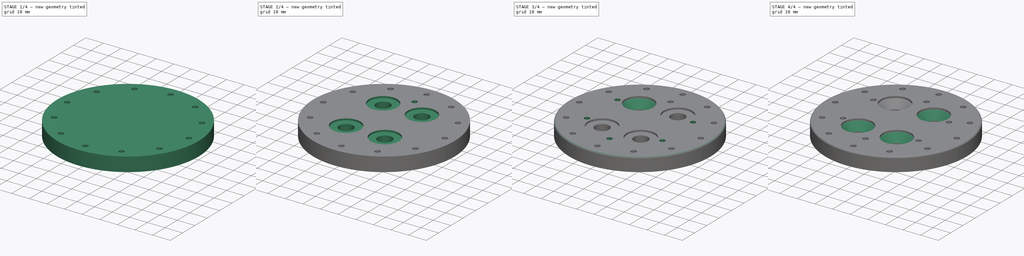
[diagram: build sequence overview — one tinted view per stage of 4, left to right]
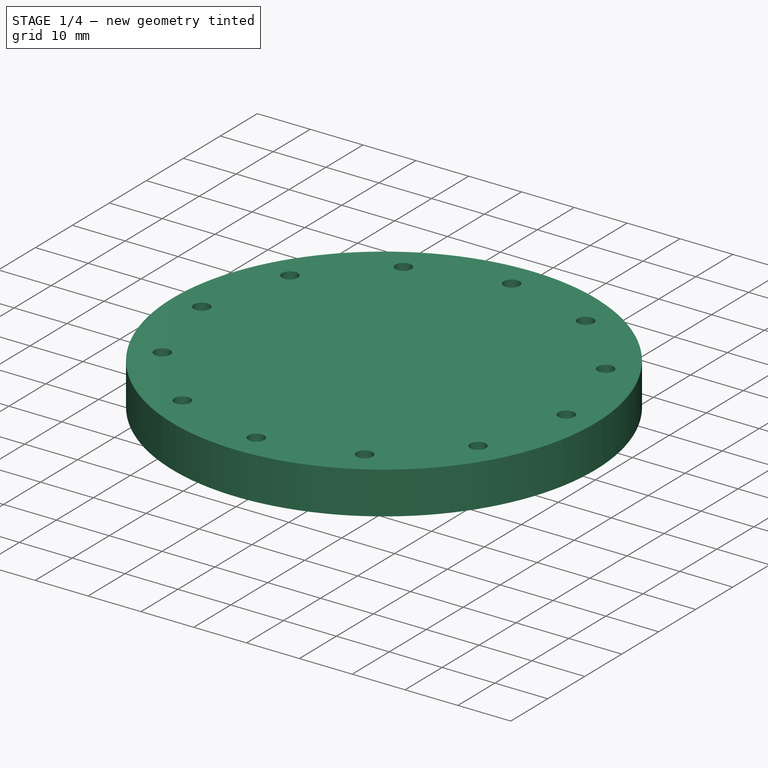
[diagram: stage 1 of 4 — iso view after this stage's code; geometry added in this stage tinted green]
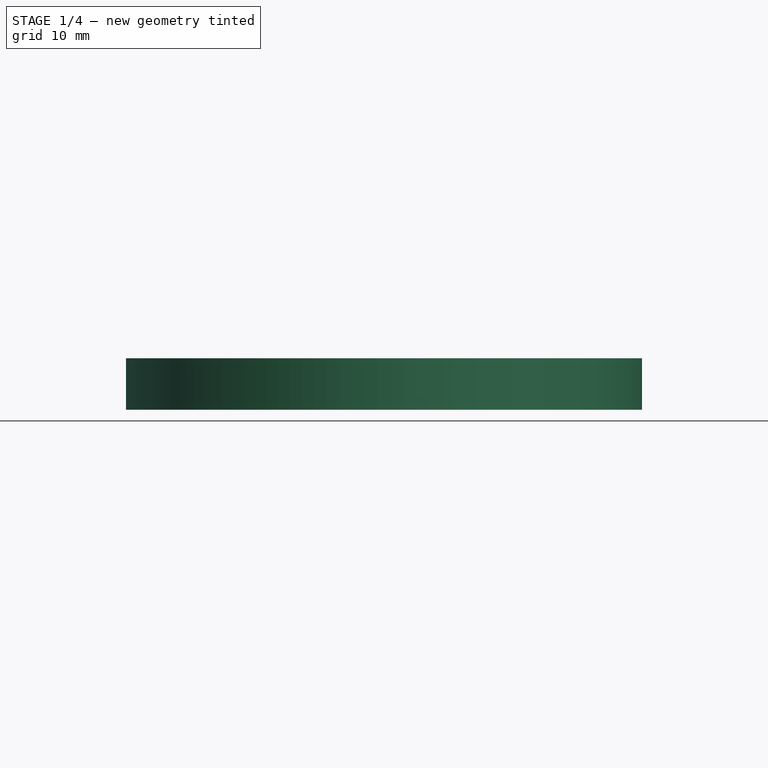
[diagram: stage 1 of 4 — front view after this stage's code; geometry added in this stage tinted green]
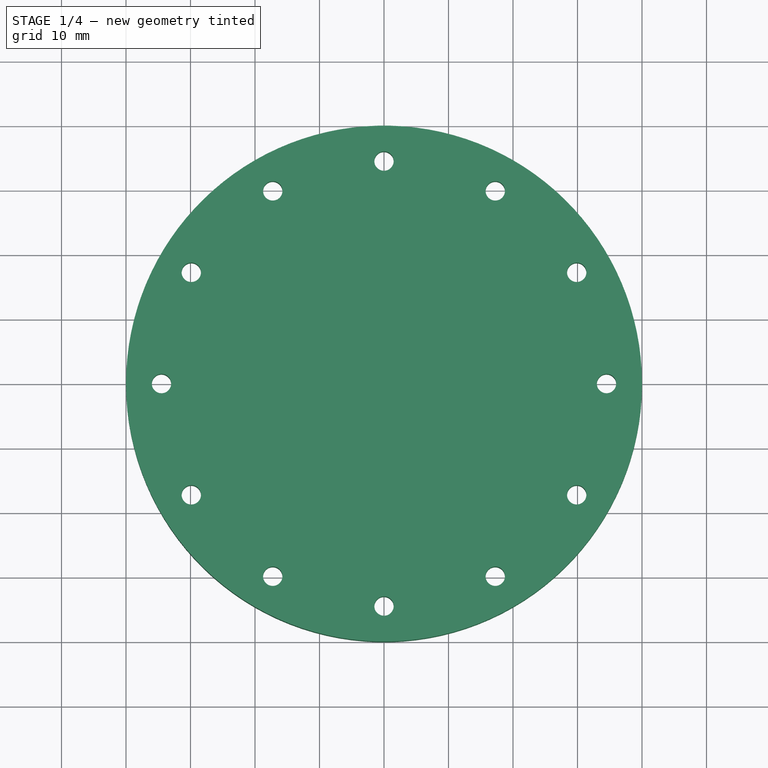
[diagram: stage 1 of 4 — top view after this stage's code; geometry added in this stage tinted green]
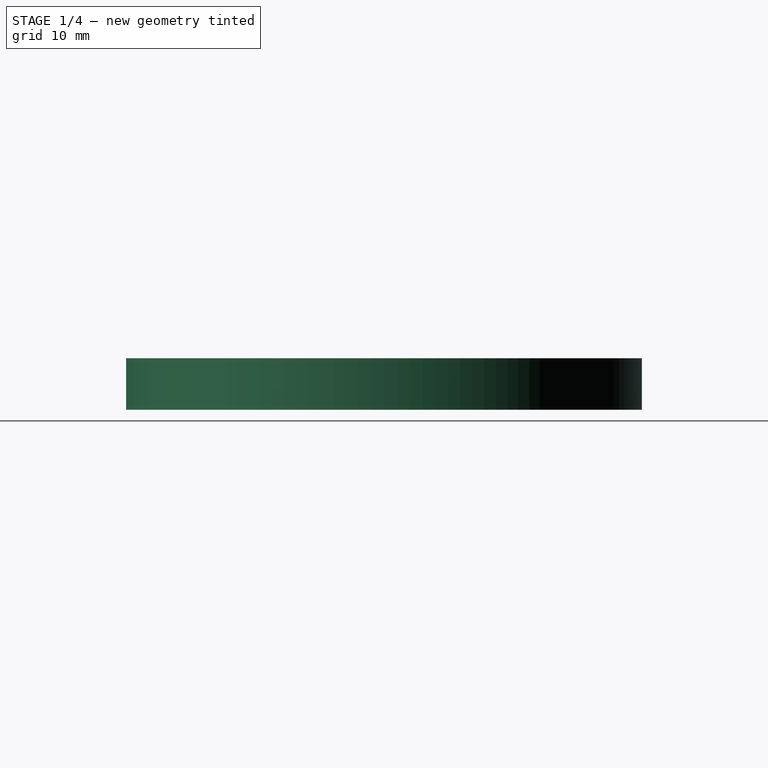
[diagram: stage 1 of 4 — right view after this stage's code; geometry added in this stage tinted green]
FCSTD DOCUMENT  (FreeCAD 0.16R6712 (Git))
Label: TestRig_DummyRingDrive3
License: All rights reserved
LicenseURL: http://en.wikipedia.org/wiki/All_rights_reserved
objects: Sketcher::SketchObject×5, PartDesign::Pocket×4, PartDesign::Chamfer×4, PartDesign::PolarPattern×2, PartDesign::Pad×1, PartDesign::Fillet×1
note: 22 computed .brp shape members not serialized (recipe doc carries the construction recipe); baked Part::Feature solids carry a one-line shape summary decoded from their .brp

FEATURE [Sketcher::SketchObject] Sketch
  sketch-geometry (1):
    g0: Circle CenterX=0 CenterY=0 CenterZ=0 NormalX=0 NormalY=0 NormalZ=1 Radius=40
  constraints (1):
    c: Radius(g0) = 40
FEATURE [PartDesign::Pad] Pad
  Length = 8
  Length2 = 100
  Sketch = -> Sketch
  Type = 0
FEATURE [Sketcher::SketchObject] Sketch001
  Placement = pos=(0,0,8) rot=(0,0,1;0rad)
  Support = -> Pad [Face3]
  sketch-geometry (1):
    g0: Circle CenterX=34.5 CenterY=0 CenterZ=0 NormalX=0 NormalY=0 NormalZ=1 Radius=1.5
  constraints (3):
    c: PointOnObject(g0,g-1)
    c: DistanceX(g-1,g0) = 34.5
    c: Radius(g0) = 1.5
FEATURE [PartDesign::Pocket] Pocket
  Length = 5
  Sketch = -> Sketch001
  Type = 1
FEATURE [PartDesign::PolarPattern] PolarPattern
  Angle = 360
  Axis = -> Sketch001 [N_Axis]
  Occurrences = 12
  Originals = -> [Pocket]
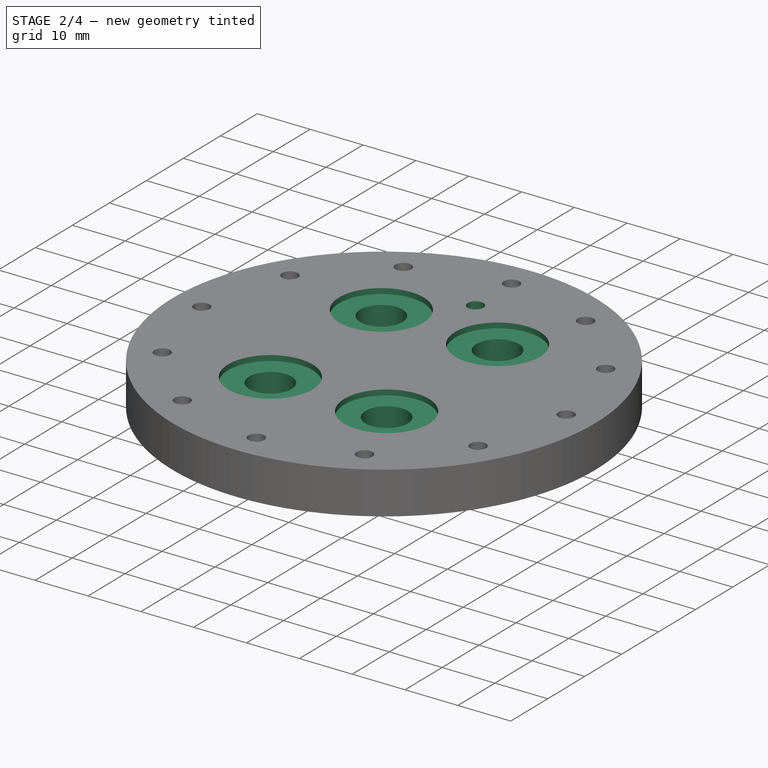
[diagram: stage 2 of 4 — iso view after this stage's code; geometry added in this stage tinted green]
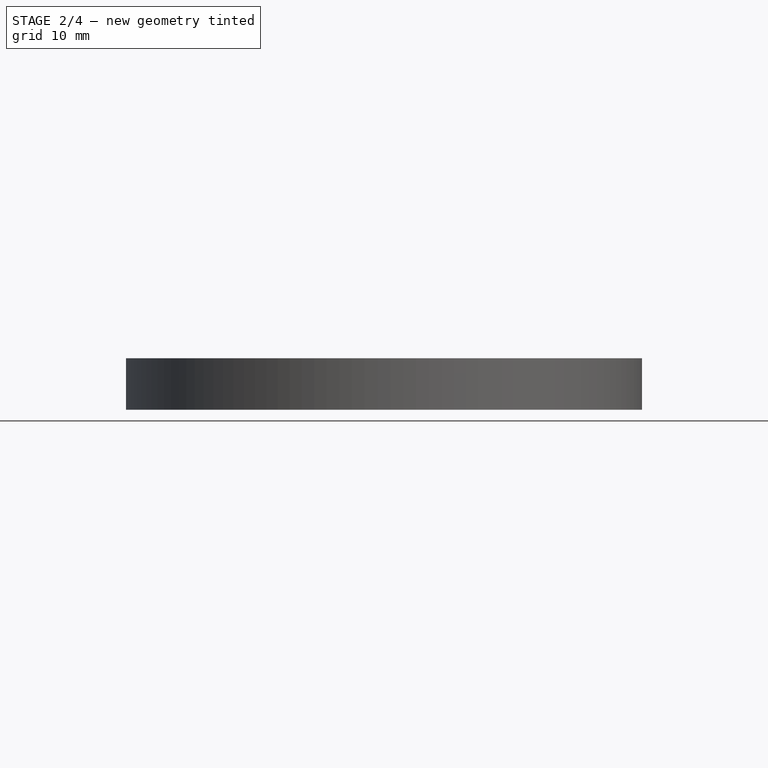
[diagram: stage 2 of 4 — front view after this stage's code; geometry added in this stage tinted green]
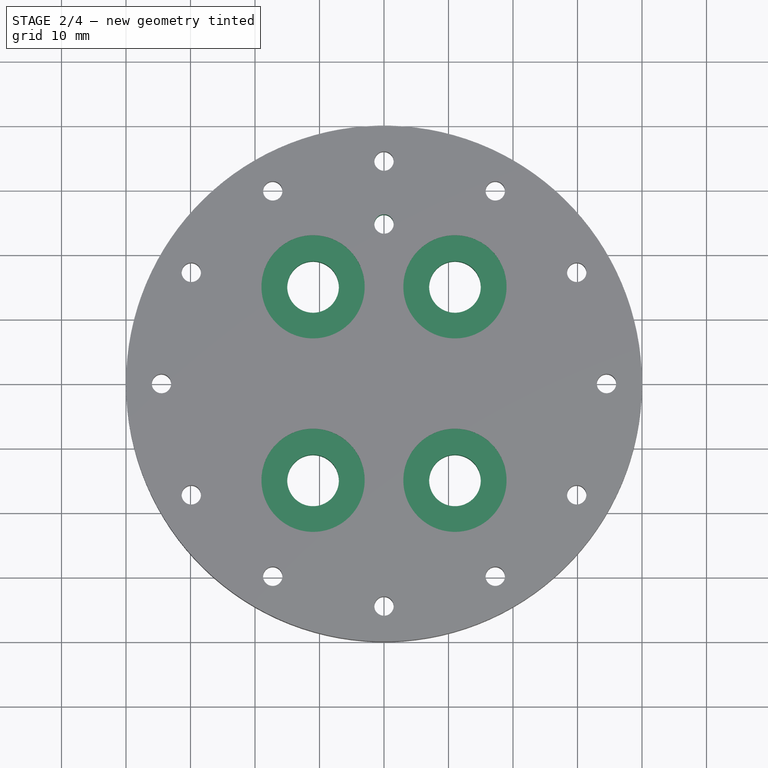
[diagram: stage 2 of 4 — top view after this stage's code; geometry added in this stage tinted green]
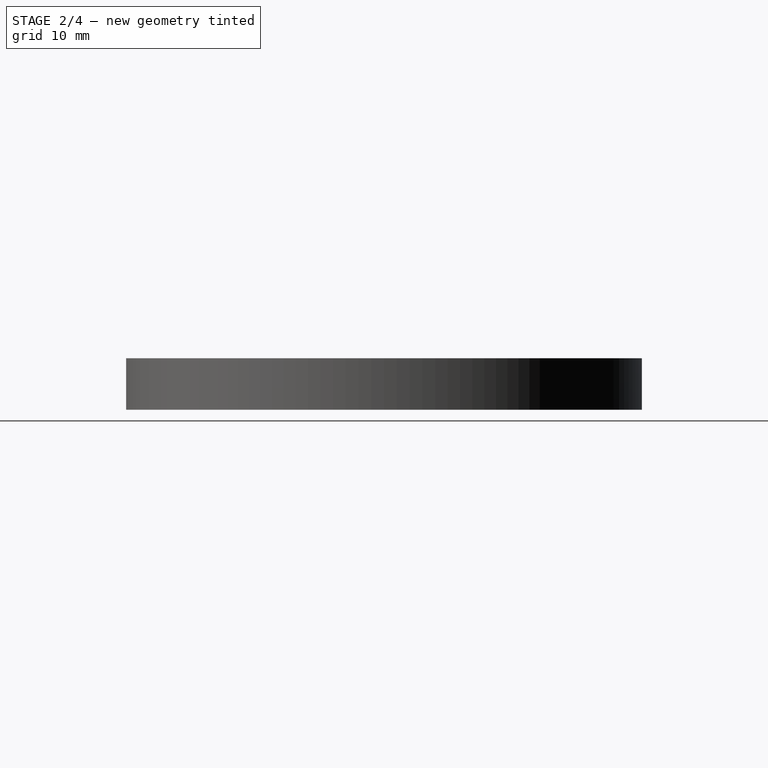
[diagram: stage 2 of 4 — right view after this stage's code; geometry added in this stage tinted green]
FEATURE [Sketcher::SketchObject] Sketch002
  Placement = pos=(0,0,8) rot=(0,0,1;0rad)
  Support = -> PolarPattern [Face3]
  sketch-geometry (10):
    g0: LineSegment [constr] StartX=-11 StartY=15 StartZ=0 EndX=11 EndY=15 EndZ=0
    g1: LineSegment [constr] StartX=11 StartY=15 StartZ=0 EndX=11 EndY=-15 EndZ=0
    g2: LineSegment [constr] StartX=11 StartY=-15 StartZ=0 EndX=-11 EndY=-15 EndZ=0
    g3: LineSegment [constr] StartX=-11 StartY=-15 StartZ=0 EndX=-11 EndY=15 EndZ=0
    g4: GeomPoint [constr] X=0 Y=15 Z=0
    g5: GeomPoint [constr] X=-11 Y=0 Z=0
    g6: Circle CenterX=11 CenterY=15 CenterZ=0 NormalX=0 NormalY=0 NormalZ=1 Radius=4
    g7: Circle CenterX=11 CenterY=-15 CenterZ=0 NormalX=0 NormalY=0 NormalZ=1 Radius=4
    g8: Circle CenterX=-11 CenterY=-15 CenterZ=0 NormalX=0 NormalY=0 NormalZ=1 Radius=4
    g9: Circle CenterX=-11 CenterY=15 CenterZ=0 NormalX=0 NormalY=0 NormalZ=1 Radius=4
  constraints (24):
    c: Coincident(g0,g1)
    c: Coincident(g1,g2)
    c: Coincident(g2,g3)
    c: Coincident(g3,g0)
    c: Horizontal(g0)
    c: Horizontal(g2)
    c: Vertical(g1)
    c: Vertical(g3)
    c: PointOnObject(g4,g0)
    c: PointOnObject(g5,g3)
    c: Symmetric(g0,g0,g4)
    c: PointOnObject(g4,g-2)
    c: Symmetric(g0,g2,g5)
    c: PointOnObject(g5,g-1)
    c: DistanceX(g0,g0) = 22
    c: DistanceY(g1,g1) = 30
    c: Coincident(g6,g0)
    c: Coincident(g7,g1)
    c: Coincident(g8,g2)
    c: Coincident(g9,g0)
    c: Radius(g6) = 4
    c: Equal(g9,g8)
    c: Equal(g8,g7)
    c: Equal(g7,g6)
FEATURE [PartDesign::Pocket] Pocket001
  Length = 5
  Sketch = -> Sketch002
  Type = 1
FEATURE [Sketcher::SketchObject] Sketch003
  ExternalGeometry = -> [Pocket001]
  Placement = pos=(0,0,8) rot=(0,0,1;0rad)
  Support = -> Pocket001 [Face3]
  sketch-geometry (8):
    g0: LineSegment [constr] StartX=-11 StartY=15 StartZ=0 EndX=11 EndY=15 EndZ=0
    g1: LineSegment [constr] StartX=11 StartY=15 StartZ=0 EndX=11 EndY=-15 EndZ=0
    g2: LineSegment [constr] StartX=11 StartY=-15 StartZ=0 EndX=-11 EndY=-15 EndZ=0
    g3: LineSegment [constr] StartX=-11 StartY=-15 StartZ=0 EndX=-11 EndY=15 EndZ=0
    g4: Circle CenterX=11 CenterY=15 CenterZ=0 NormalX=0 NormalY=0 NormalZ=1 Radius=8
    g5: Circle CenterX=-11 CenterY=15 CenterZ=0 NormalX=0 NormalY=0 NormalZ=1 Radius=8
    g6: Circle CenterX=-11 CenterY=-15 CenterZ=0 NormalX=0 NormalY=0 NormalZ=1 Radius=8
    g7: Circle CenterX=11 CenterY=-15 CenterZ=0 NormalX=0 NormalY=0 NormalZ=1 Radius=8
  constraints (19):
    c: Coincident(g0,g1)
    c: Coincident(g1,g2)
    c: Coincident(g2,g3)
    c: Coincident(g3,g0)
    c: Horizontal(g0)
    c: Horizontal(g2)
    c: Vertical(g1)
    c: Vertical(g3)
    c: Coincident(g4,g0)
    c: Coincident(g5,g0)
    c: Coincident(g6,g2)
    c: Coincident(g7,g1)
    c: Radius(g5) = 8
    c: Equal(g0,g4)
    c: Equal(g4,g6)
    c: Equal(g6,g7)
    c: Equal(g7,g5)
    c: Coincident(g2,g-3)
    c: Coincident(g0,g-4)
FEATURE [PartDesign::Pocket] Pocket002
  Length = 1
  Sketch = -> Sketch003
  Type = 0
FEATURE [Sketcher::SketchObject] Sketch004
  Placement = pos=(0,0,8) rot=(0,0,1;0rad)
  Support = -> Pocket002 [Face3]
  sketch-geometry (2):
    g0: Circle CenterX=0 CenterY=25 CenterZ=0 NormalX=0 NormalY=0 NormalZ=1 Radius=1.5
    g1: LineSegment StartX=0 StartY=25 StartZ=0 EndX=0 EndY=0 EndZ=0
  constraints (6):
    c: PointOnObject(g0,g-2)
    c: Radius(g0) = 1.5
    c: Coincident(g1,g0)
    c: Coincident(g1,g-1)
    c: Vertical(g1)
    c: DistanceY(g1,g1) = 25
FEATURE [PartDesign::Pocket] Pocket003
  Length = 5
  Sketch = -> Sketch004
  Type = 1
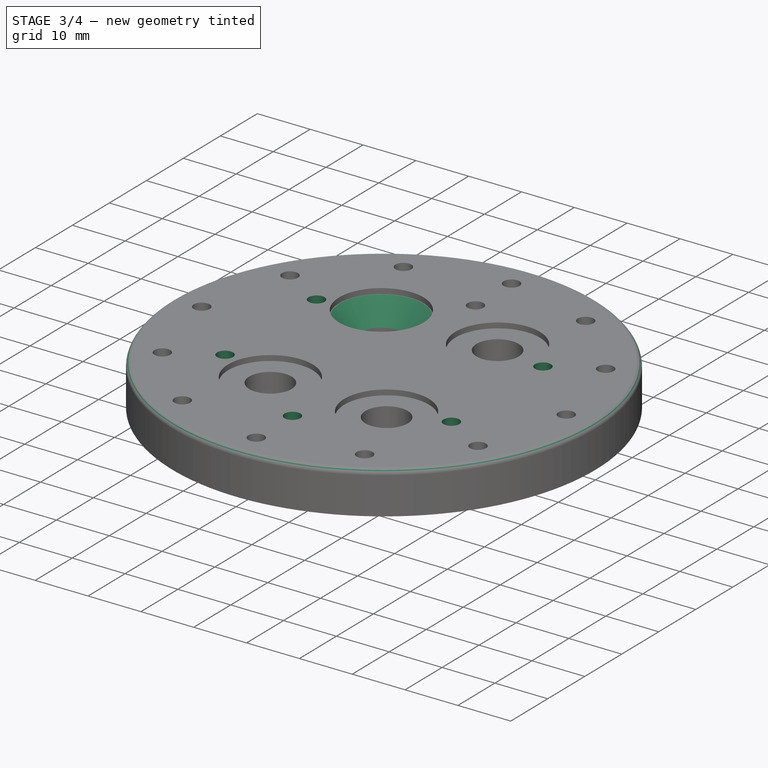
[diagram: stage 3 of 4 — iso view after this stage's code; geometry added in this stage tinted green]
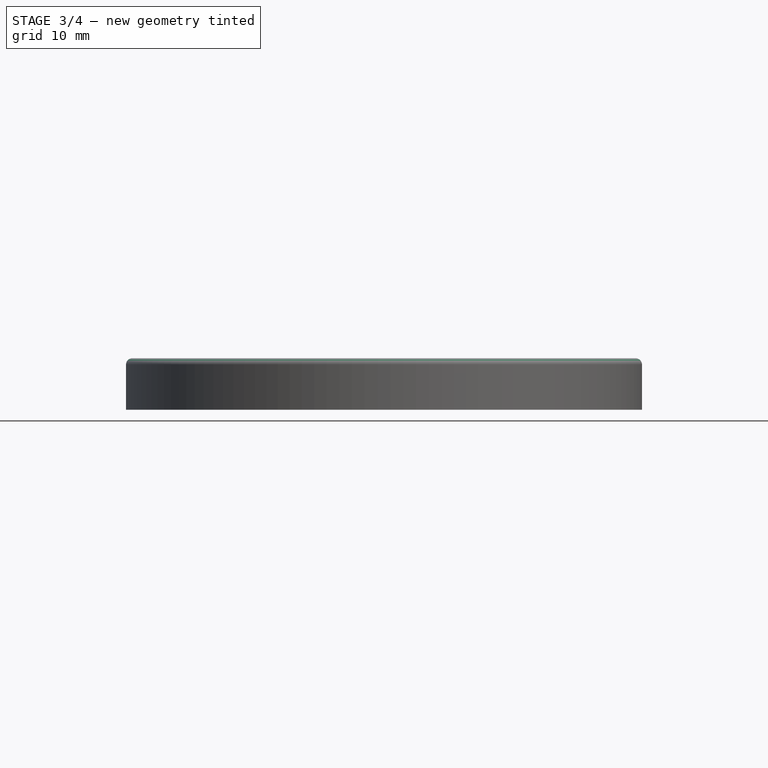
[diagram: stage 3 of 4 — front view after this stage's code; geometry added in this stage tinted green]
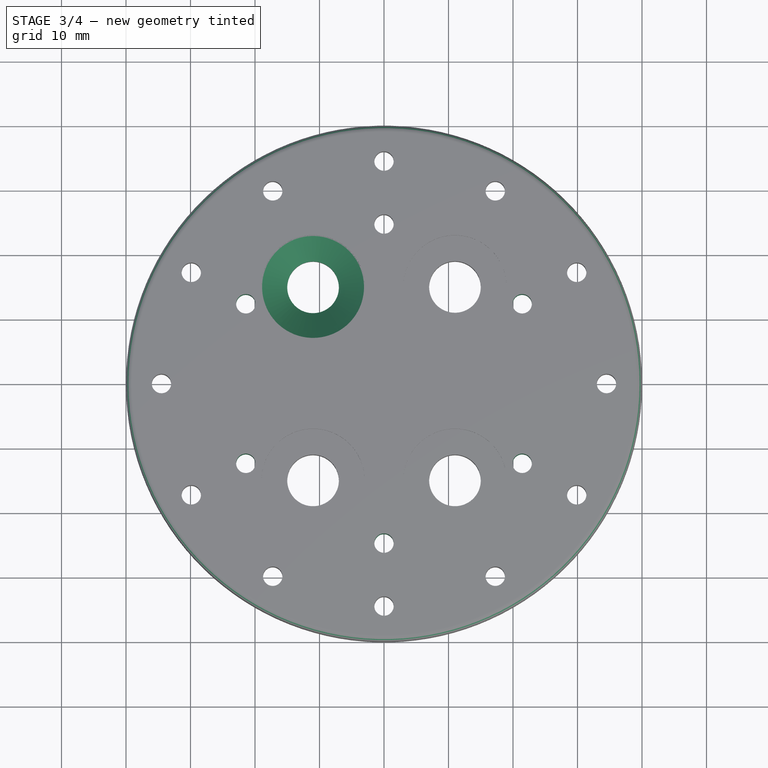
[diagram: stage 3 of 4 — top view after this stage's code; geometry added in this stage tinted green]
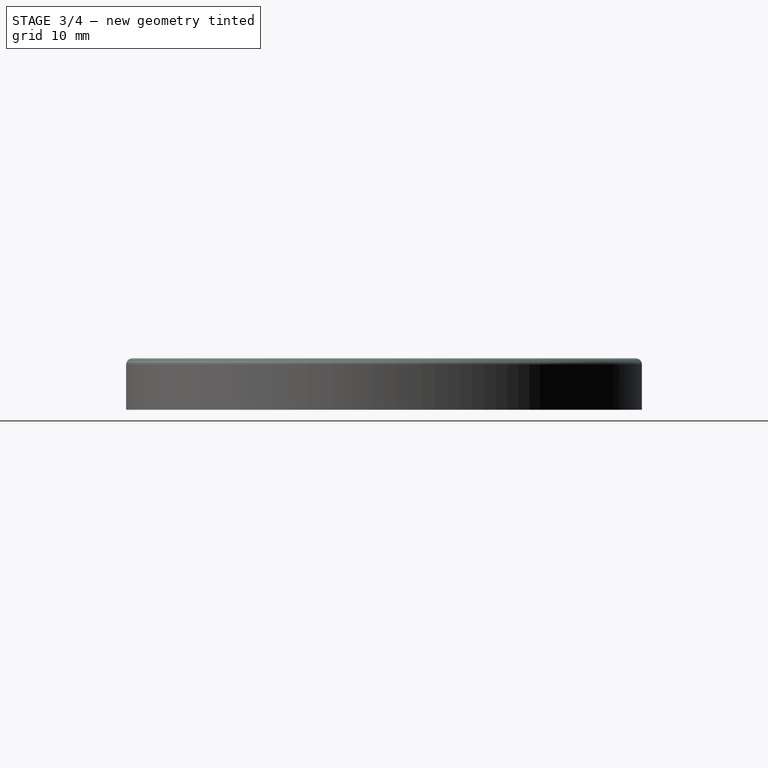
[diagram: stage 3 of 4 — right view after this stage's code; geometry added in this stage tinted green]
FEATURE [PartDesign::PolarPattern] PolarPattern001
  Angle = 360
  Axis = -> Sketch004 [N_Axis]
  Occurrences = 6
  Originals = -> [Pocket003]
FEATURE [PartDesign::Fillet] Fillet
  Base = -> PolarPattern001 [Edge3]
  Radius = 1
FEATURE [PartDesign::Chamfer] Chamfer
  Base = -> Fillet [Edge51]
  Size = 3.9
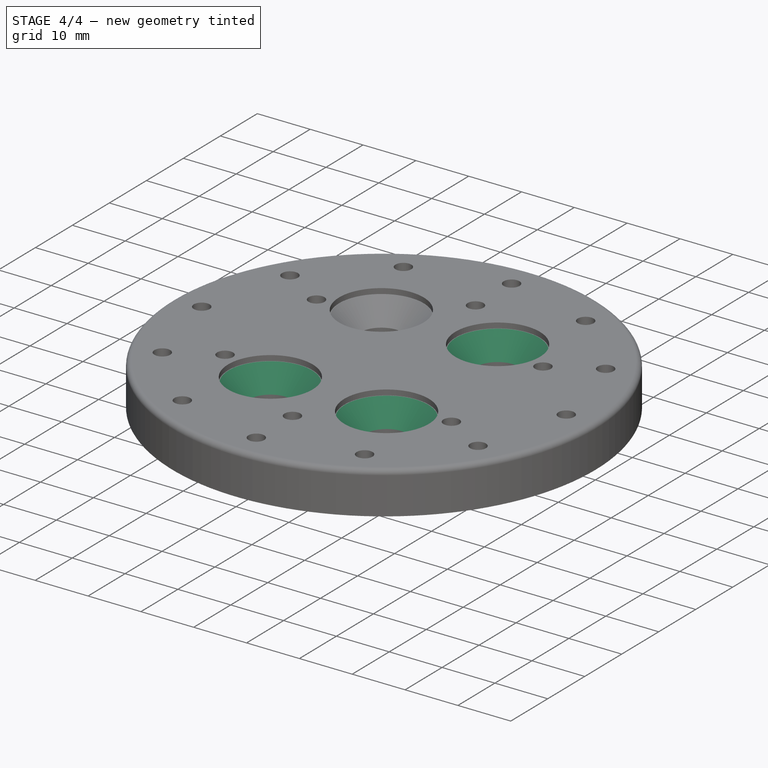
[diagram: stage 4 of 4 — iso view after this stage's code; geometry added in this stage tinted green]
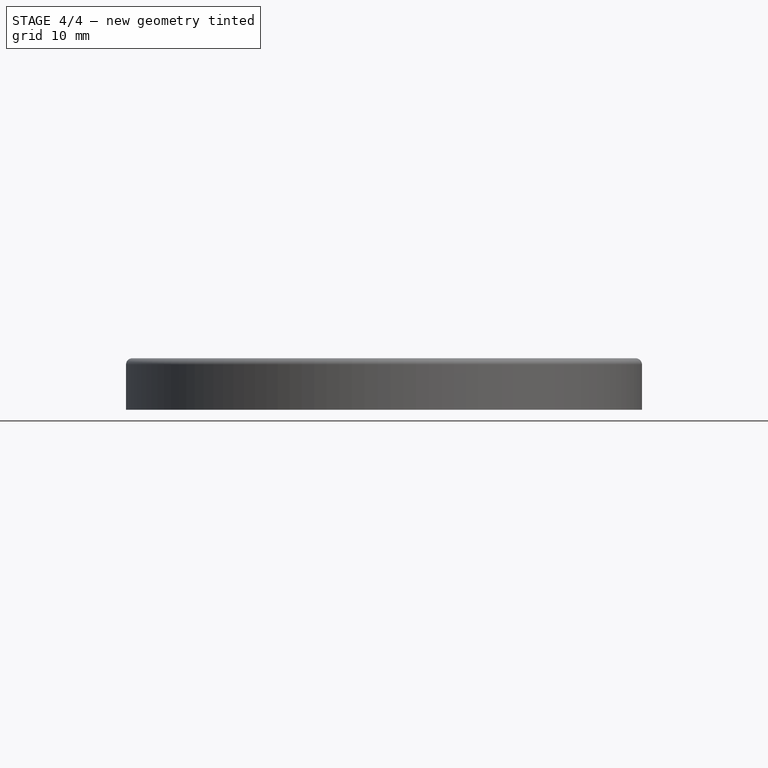
[diagram: stage 4 of 4 — front view after this stage's code; geometry added in this stage tinted green]
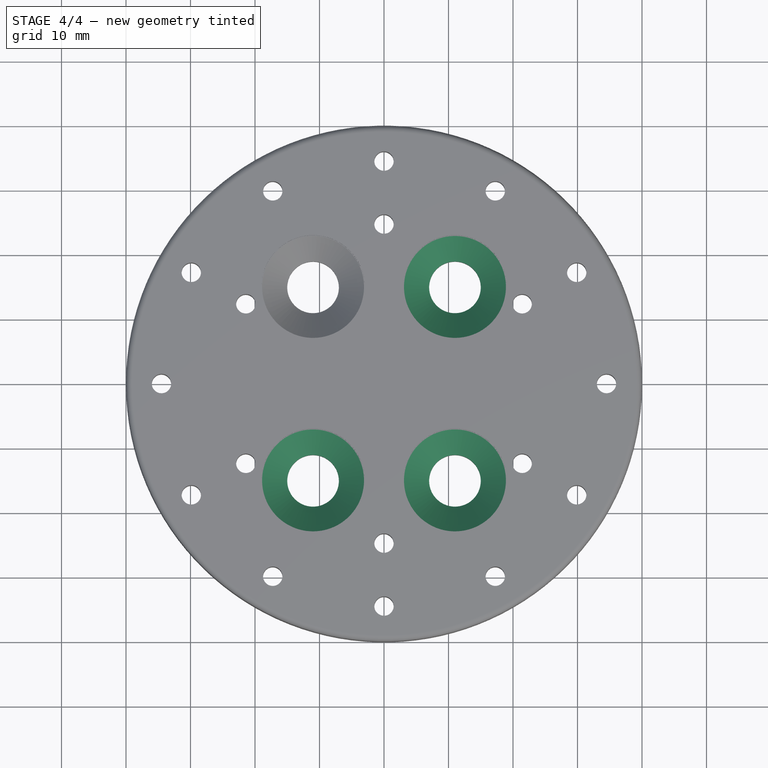
[diagram: stage 4 of 4 — top view after this stage's code; geometry added in this stage tinted green]
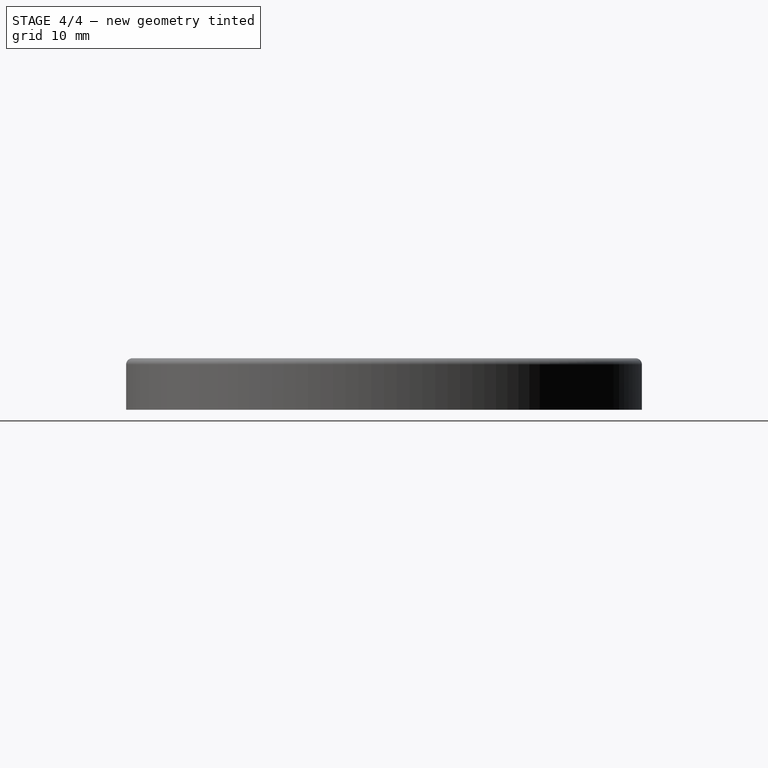
[diagram: stage 4 of 4 — right view after this stage's code; geometry added in this stage tinted green]
FEATURE [PartDesign::Chamfer] Chamfer001
  Base = -> Chamfer [Edge37]
  Size = 3.9
FEATURE [PartDesign::Chamfer] Chamfer002
  Base = -> Chamfer001 [Edge41]
  Size = 3.9
FEATURE [PartDesign::Chamfer] Chamfer003
  Base = -> Chamfer002 [Edge43]
  Size = 3.9
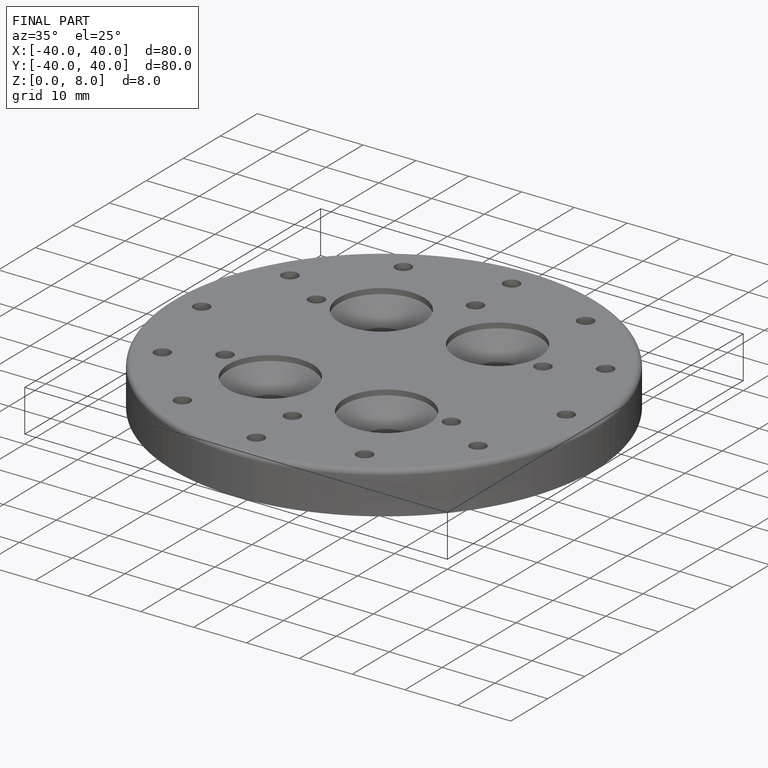
[diagram: finished part — iso view with bounding-box wireframe]
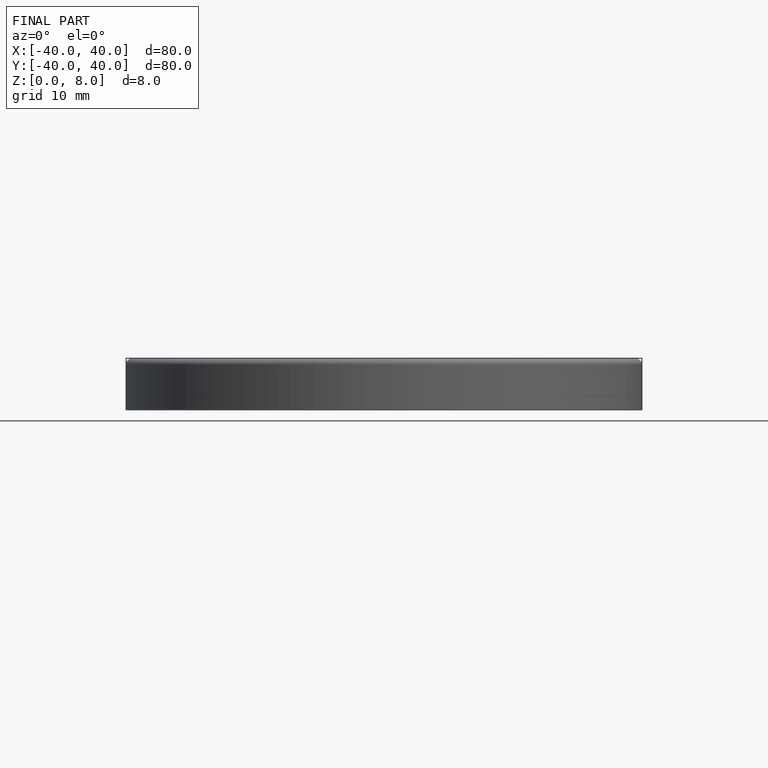
[diagram: finished part — front view with bounding-box wireframe]
